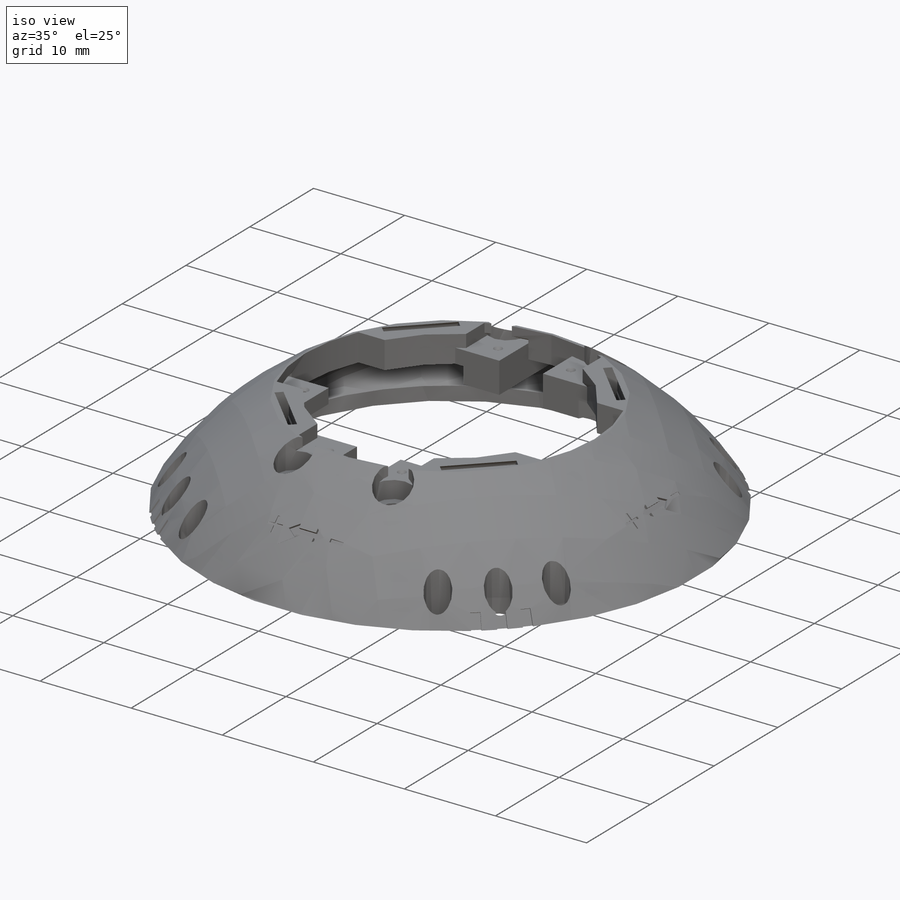
[diagram: iso view]
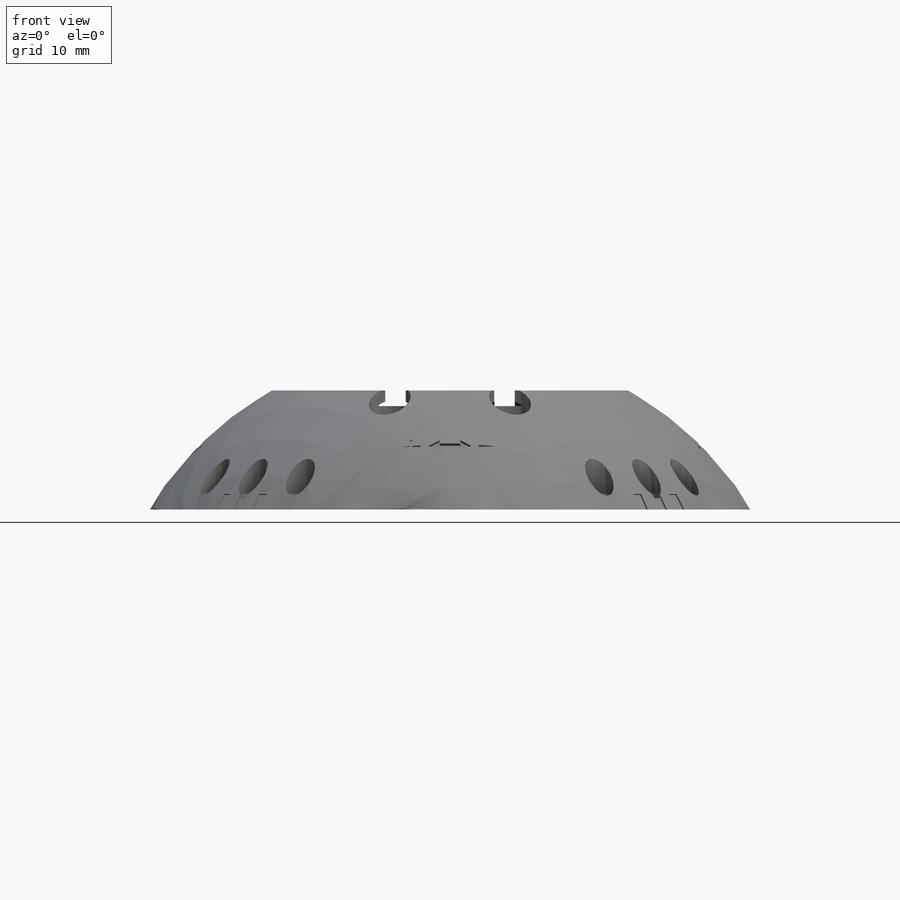
[diagram: front view]
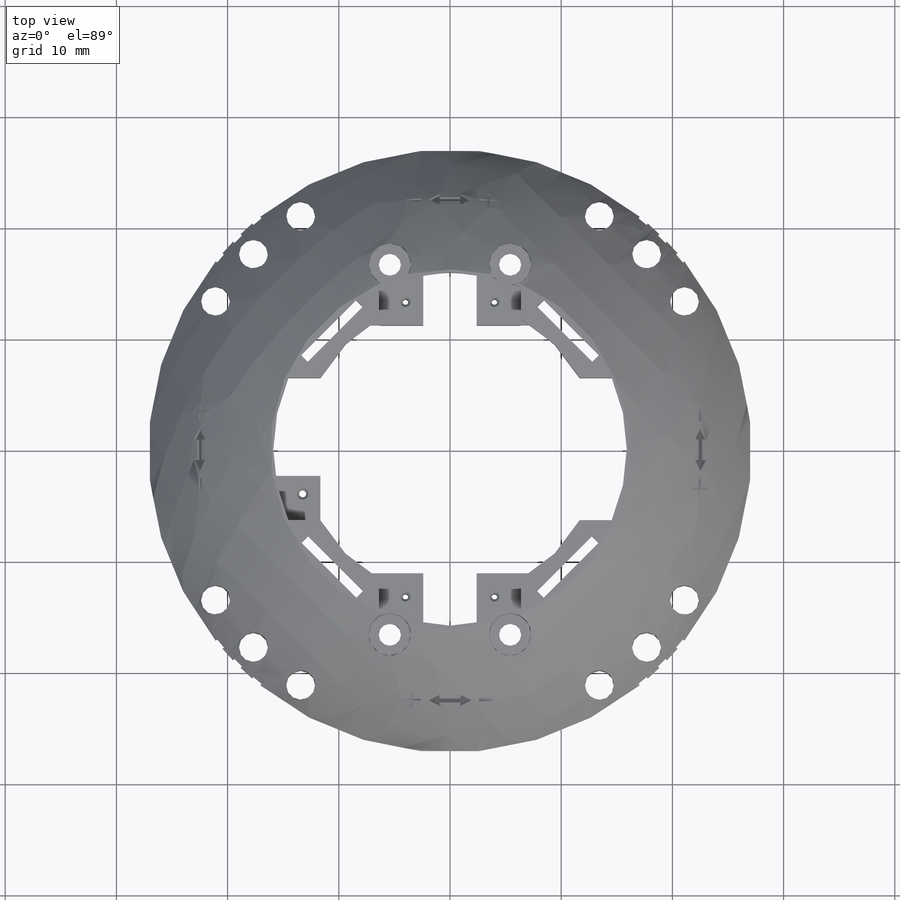
[diagram: top view]
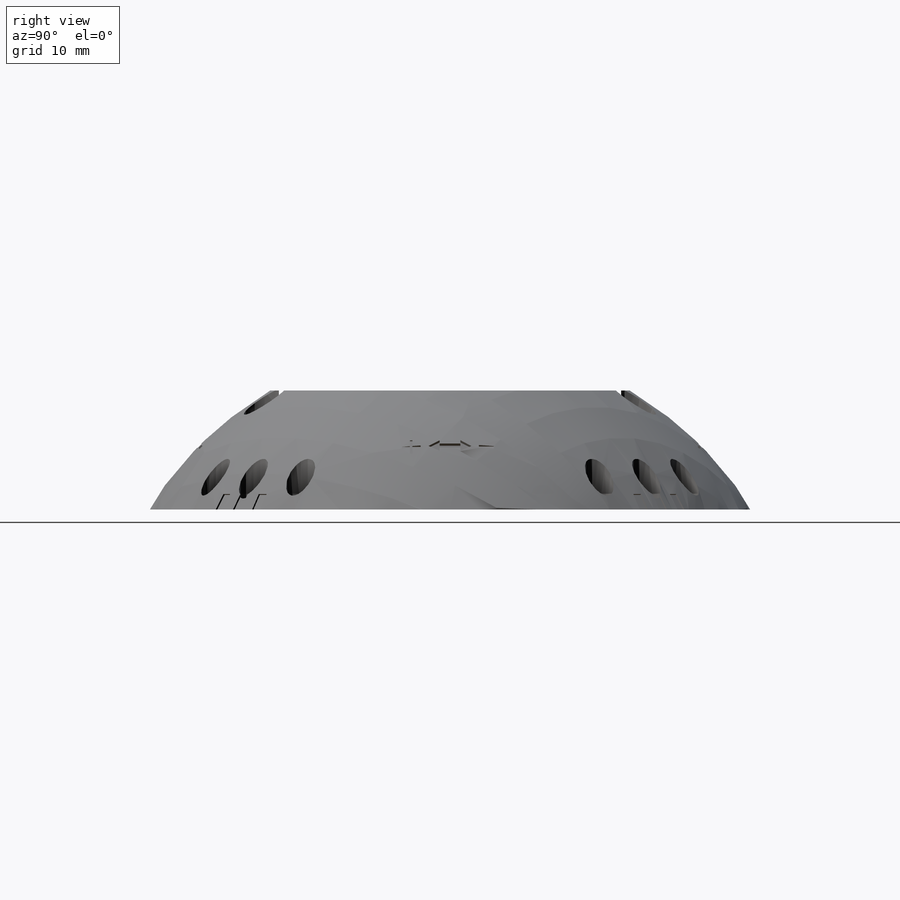
[diagram: right view]
SOLIDWORKS PART (.sldprt)
format: sldprt  version: not decoded by parser v0  size: 39,004,672 bytes
history: native  units: mm
features: sketch x71, cut_extrude x33, extrude x23, pattern_circular x22, plane x21, fillet x10, chamfer x8, cut_revolve x5, revolve x2, material x1, shell x1, mirror x1 + 7 further entries (+34 scaffold rows collapsed; 17 parser-record rows omitted)
feature tree (256):
  scaffold x34  (default folders/planes/origin — collapsed)
  material  "Material <not specified>"
  "Axis7"
  "Axis8"
  sketch  "Sketch1"  dims[c1.D1=10.5mm c1.D2=10.5mm c1.D3=12.0mm c1.D4=10.5mm c2.D1=55.0mm c2.D2=55.0mm]
  extrude  "Extrude1"  Depth=27.5mm
  parser-record x17  (decoder bookkeeping rows leaked as tree rows — omitted from the tree; the rows remain in map.json)
  plane  "Plane1"
  plane  "Plane2"
  plane  "Plane3"
  plane  "Plane4"
  sketch  "3DSketch4"
  plane  "Plane17"
  plane  "Plane6"
  plane  "Plane30"
  "Axis1"
  "Axis2"
  "Axis3"
  "Long Diagonal"
  "Axis5"
  sketch  "Sketch38"  dims[c1.D1=~16.814999mm c2.D1=22.5deg c3.D1=0.2mm c3.D2=0.2mm c3.D3=0.2mm c3.D4=0.2mm]
  sketch  "3DSketch2"  dims[D1=2.0mm D2=2.0mm]
  plane  "Plane12"
  sketch  "3DSketch3"  dims[D1=3.6mm D2=2.0mm D3=2.0mm]
  plane  "Plane13"
  sketch  "Sketch43"  dims[D1=110.0mm D2=31.9mm]
  cut_revolve  "Rounded Corners"  Angle=360deg
  shell  "Shell6"  Thickness=1mm
  plane  "Plane Bearing Bottom"  Offset=15.3mm
  plane  "Plane Bearing Top"  Offset=4.7625mm
  plane  "Plane Batteryboard Bottom"  Offset=10.8mm
  sketch  "Sketch103"
  sketch  "Sketch104"
  sketch  "Sketch49"  dims[c1.D1=43.8mm c1.D2=26.5mm c2.D2=45.0deg c2.D3=22.05mm c3.D3=26.6deg c4.D3=~6.168578mm c5.D3=26.6deg c5.D4=~6.898785mm c5.D2=~6.168578mm c6.D2=26.6deg c6.D3=45.0deg]
  extrude  "Axial Bearing Support"  [1 undecoded]
  pattern_circular  "Axial Bearing Support Pattern"  Count=4 Angle=360deg
  sketch  "Sketch105"  dims[c1.D3=43.8mm c1.D1=~26.312925mm c2.D1=45.0deg c2.D2=~4.793492mm c3.D2=26.6deg]
  extrude  "Axial Battery Board Support"  [1 undecoded]
  pattern_circular  "Axial Battery Board Support Pattern"  Count=4 Angle=360deg
  sketch  "Sketch50"  dims[c1.D1=47.9mm c1.D2=~41.099495mm c2.D2=45.0deg]
  extrude  "Circumference"  [1 undecoded]
  sketch  "Sketch86"  dims[c1.D1=~27.980209mm c2.D1=45.0deg c2.D2=~3.018964mm]
  extrude  "Cube Reinforcement"  [1 undecoded]
  sketch  "Main PCB Snap Holder Sketch"  dims[c1.D1=21.9mm c1.D2=21.275mm c1.D3=2.5mm c1.D4=4.0mm c2.D3=8.0mm]
  revolve  "Main PCB Snap Holder"  Angle=18.4deg
  pattern_circular  "CirPattern77"  Count=4 Angle=360deg
  plane  "Plane25"  Offset=3mm
  sketch  "Connector Sketch"  dims[c1.D6=1.75mm c1.D7=1.75mm c2.D6=3.0mm c2.D8=3.0mm c2.D7=3.0mm c2.D2=13.5mm c2.D3=9.7mm c2.D9=13.3mm c2.D1=~15.892136mm c3.D1=45.0deg c3.D2=~15.892136mm c4.D2=15.0deg c4.D4=1.5875mm c4.D5=6.35mm c4.D9=4.5mm c4.D1=0.5mm c4.D6=1.5mm c4.D7=5.5mm c4.D8=12.8mm c4.D3=0.5mm]
  sketch  "Sketch61"  dims[D1=0.0mm]
  cut_extrude  "Cut-Extrude11"  [1 undecoded]
  pattern_circular  "CirPattern72"  Count=4 Angle=360deg
  pattern_circular  "CirPattern73"  Count=4 Angle=360deg
  sketch  "Sketch63"
  extrude  "Face Design Corners"  Depth=3mm
  sketch  "Sketch64"
  extrude  "Face Design Cross"  Depth=0.9mm
  sketch  "Sketch67"
  extrude  "Face Design Center Round"  Depth=3mm
  sketch  "Sketch56"  dims[c1.D1=1.8mm c1.D2=0.25mm c1.D3=~0.79375mm c1.D4=~0.10625mm c2.D4=135.0deg c2.D5=0.5mm c2.D3=~0.79375mm c2.D2=2.2mm c2.D6=15.0mm]
  cut_extrude  "Magnet Slot"  Depth=3.5mm
  pattern_circular  "Magnet Slot Pattern"  Count=4 Angle=360deg
  pattern_circular  "Replicate Face Design on all Faces 1"  Count=4 Angle=360deg
  pattern_circular  "Replicate Face Design on all Faces 2"  Count=4 Angle=360deg
  sketch  "Sketch72"  dims[c1.D4=0.5mm c1.D8=0.65mm c1.D1=4.0mm c1.D2=0.5mm c1.D3=4.0mm c1.D5=13.25mm c1.D6=4.0mm c1.D7=0.5mm c1.D9=13.25mm c1.D10=4.0mm c2.D6=0.5mm c2.D7=4.0mm]
  extrude  "PCB Attachment Screw Holes"  Depth=1.6mm
  chamfer  "Chamfer6"  Distance=0.3mm Angle=35deg
  sketch  "Sketch73"  dims[D2=0.5mm D1=0.5mm D3=4.0]
  extrude  "PCB Rest Ridge"  Depth=1.6mm
  sketch  "Sketch81"  dims[D1=2.2mm]
  cut_extrude  "Cutout for Connector Cable"  Depth=2mm
  sketch  "Sketch115"
  extrude  "Boss-Extrude19"  Depth=3mm
  pattern_circular  "CirPattern74"  Count=4 Angle=360deg
  pattern_circular  "CirPattern75"  Count=2 Angle=90deg
  pattern_circular  "CirPattern76"  Count=2 Angle=270deg
  chamfer  "Chamfer7"  Distance=0.8mm Angle=45deg
  chamfer  "Chamfer8"  Distance=0.8mm Angle=45deg
  sketch  "Sketch68"
  cut_extrude  "Face Design Slip Ring Cavity"  Depth=2.4mm
  sketch  "Sketch117"  dims[D1=12.0mm D2=2.5mm]
  cut_extrude  "Cut-Extrude25"  Depth=1.5mm
  sketch  "Sketch69"
  extrude  "Boss-Extrude8"  Depth=3mm
  sketch  "Sketch87"
  cut_extrude  "Cut-Extrude18"  [1 undecoded]
  sketch  "Sketch70"
  cut_extrude  "Cut-Extrude13"  [1 undecoded]
  chamfer  "Chamfer2"  Distance=0.5mm Angle=45deg
  chamfer  "Chamfer3"  Distance=0.5mm Angle=45deg
  chamfer  "Chamfer4"  Distance=0.5mm Angle=45deg
  chamfer  "Chamfer5"  Distance=0.5mm Angle=60deg
  sketch  "Sketch106"  dims[D1=8.7mm]
  cut_extrude  "Sensor Cavity"  Depth=2.6mm
  sketch  "Sketch107"  dims[D1=7.75mm]
  cut_extrude  "Sensor Hole"  [1 undecoded]
  sketch  "Sketch109"  dims[D1=9.5mm]
  cut_extrude  "Cut-Extrude20"  Depth=1.8mm
  sketch  "Sketch110"  dims[D1=3.0mm D2=9.5mm]
  cut_extrude  "Cut-Extrude21"  Depth=3mm
  pattern_circular  "Sensor on Bottom"  Count=2 Angle=90deg
  pattern_circular  "CirPattern81"  Count=2 Angle=90deg
  pattern_circular  "CirPattern82"  Count=4 Angle=360deg
  plane  "Plane28"  Offset=10mm
  sketch  "Sketch74"  dims[D1=5.0mm D2=5.0mm D3=6.0mm]
  cut_extrude  "Programming Connector Access"  [1 undecoded]
  sketch  "Sketch85"  dims[c1.D1=~33.578197mm c2.D1=45.0deg c2.D2=10.0mm c3.D1=~19.775463mm c3.D3=~2.854579mm c4.D1=~22.630042mm c4.D4=~43.381775mm c5.D4=45.0deg]
  cut_extrude  "Cut-Extrude17"  Depth=22mm
  sketch  "Sketch51"  dims[c1.D1=50.0mm c1.D3=1.6mm c1.D2=~22.897804mm c2.D2=32.5deg]
  cut_extrude  "Cut-Extrude3"  [1 undecoded]
  pattern_circular  "CirPattern65"  Count=3 Angle=25deg
  pattern_circular  "CirPattern66"  Count=4 Angle=360deg
  sketch  "Sketch91"  dims[c1.D2=33.0mm c1.D1=31.75mm c1.D3=1.25mm c2.D3=5.0deg c2.D4=1.25mm c3.D4=5.0deg c4.D4=31.75mm c4.D3=~27.624908mm c5.D3=3.0deg c5.D4=1.25mm c6.D4=5.0deg c6.D5=31.75mm c7.D5=~31.779102deg c7.D1=1.0mm]
  cut_revolve  "Alignment Notch"  Angle=1deg
  pattern_circular  "Alignment Notch CirPattern"  Count=4 Angle=360deg
  pattern_circular  "CirPattern83"  Count=2 Angle=5deg
  pattern_circular  "CirPattern84"  Count=2 Angle=5deg
  sketch  "Sketch123"
  cut_extrude  "Cut-Extrude27"  [1 undecoded]
  plane  "Plane End of Large Part"  Offset=16.5mm
  sketch  "Sketch52"
  cut_extrude  "Cut-Extrude4"  [1 undecoded]
  plane  "Plane End of Small Part"  Offset=16.8mm
  sketch  "Sketch53"
  cut_extrude  "Cut-Extrude5"  [1 undecoded]
  sketch  "Sketch90"  dims[c1.diaAussparung=3.5mm c1.D1=~2.909488mm c2.D1=4.0]
  cut_extrude  "Cut-Extrude19"  [1 undecoded]
  plane  "Plane26"  Offset=1.79mm
  sketch  "Sketch82"  dims[c1.D1=~23.374471mm c2.D1=45.0deg c2.D2=~4.772479mm]
  extrude  "Boss-Extrude15"  [1 undecoded]
  pattern_circular  "CirPattern78"  Count=2 Angle=360deg
  plane  "Plane27"  Offset=1.5mm
  sketch  "Sketch83"  dims[c1.D1=2.0mm c1.D2=42.25mm c1.D3=2.0mm c2.D2=35.0mm c2.D4=21.125mm c3.D4=25.0deg c3.D5=21.125mm c4.D5=15.0deg c4.D3=15.625mm c5.D3=18.0deg]
  cut_extrude  "Actuated Cube Screw Holes"  [1 undecoded]
  sketch  "Sketch84"  dims[D1=3.8mm ScrewHoleCapDiameter=3.8mm]
  cut_extrude  "Actuated Cube Screw Recess"  [1 undecoded]
  sketch  "Sketch95"  dims[D1=36.0mm D2=17.0mm D3=17.0mm D4=17.0mm D5=0.5mm]
  extrude  "Battery Cube Solid Rim"  [1 undecoded]
  sketch  "Sketch94"  dims[c1.D1=2.0mm c1.D2=40.0mm c1.D3=~16.332027mm c2.D3=22.25deg c2.D4=3.0]
  cut_extrude  "Battery Cube Screw Holes"  [1 undecoded]
  plane  "Plane29"  Offset=18.3mm
  sketch  "Sketch96"  dims[c1.D1=~7.360896mm c2.D1=3.0]
  cut_extrude  "Battery Cubes Screw Recess"  [1 undecoded]
  sketch  "Sketch99"  dims[c1.D1=17.0mm c1.D2=17.0mm c1.D3=17.0mm c1.D6=2.0066mm c1.D4=21.6916mm c1.D5=11.43mm c2.D4=21.6916mm c2.D7=2.0mm]
  sketch  "Sketch97"  dims[c1.D1=17.0mm c1.D2=17.0mm c1.D3=17.0mm c1.D5=~9.728406mm c2.D5=60.0deg c2.D4=0.5mm c2.D1=2.3mm]
  cut_extrude  "Top Battery Holder Cavity"  [1 undecoded]
  sketch  "Sketch100"  dims[D1=5.0mm]
  extrude  "Top Battery Holder Post"  [1 undecoded]
  sketch  "Sketch101"  dims[D1=0.2mm D2=0.0mm]
  extrude  "Top Battery Holder Nipple"  Depth=1.5mm
  mirror  "Top Magnet Connector Post Nipple Mirror"
  cut_revolve  "Clean Up the Outside"  [1 undecoded]
  sketch  "Sketch43<3>"  dims[D1=360.0deg]
  sketch  "Sketch89"  dims[D1=30.9mm D2=21.0mm]
  cut_revolve  "Cut-Revolve2"  Angle=360deg
  sketch  "Sketch77"  dims[c1.D3=~25.933955mm c1.D1=~27.117706mm c2.D1=45.0deg c2.D2=22.0mm]
  extrude  "Boss-Extrude14"  [1 undecoded]
  sketch  "Sketch75"  dims[c1.D1=55.5mm c1.D2=55.5mm c2.D1=27.75mm c2.D2=27.75mm c2.D3=22.0mm c2.D4=22.0mm]
  extrude  "Boss-Extrude12"  Depth=2mm
  sketch  "Sketch116"  dims[D1=22.0mm]
  cut_extrude  "Cut-Extrude24"  [1 undecoded]
  sketch  "Sketch121"  dims[D1=~5.727429mm]
  extrude  "Boss-Extrude20"  [1 undecoded]
  sketch  "Sketch122"
  extrude  "Boss-Extrude21"  [1 undecoded]
  sketch  "Sketch78"  dims[substrateConnectorRadius=3.0mm substrateConnectorBridgeWidth=3.0mm substrateConnectorBridgeLength=1.5mm substrateConnectorDistanceToEdge=8.0mm]
  extrude  "Connector Positive"  Depth=4mm
  sketch  "Sketch79"  dims[D1=0.2mm]
  cut_extrude  "Connector Negative"  Depth=5mm
  fillet  "Connector Fillet 1"  Radius=0.8mm
  fillet  "Connector Fillet 2"  Radius=1mm
  fillet  "Connector Fillet 3"  Radius=0.5mm
  sketch  "Sketch113"  dims[D1=4.5mm D2=24.0mm]
  cut_extrude  "Mounting Hole"  [1 undecoded]
  pattern_circular  "CirPattern88"  Count=4 Angle=360deg
  sketch  "Sketch124"  dims[D1=33.18mm]
  extrude  "Boss-Extrude22"  Depth=1.5mm
  sketch  "Sketch125"  dims[D1=27.5mm D2=16.59mm]
  cut_revolve  "Cut-Revolve3"  Angle=360deg
  chamfer  "Mounting Hole Chamfer"  Distance=2.7mm Angle=45deg
  fillet  "Fillet2"  Radius=2.5mm
  fillet  "Fillet3"  Radius=4mm
  fillet  "Fillet9"  Radius=2mm
  sketch  "Sketch93"  dims[D1=1.5mm D2=22.0mm]
  revolve  "Revolve2"  Angle=360deg
  fillet  "Fillet7"  Radius=2mm
  sketch  "Sketch108"  dims[D1=4.0mm D2=9.0mm]
  cut_extrude  "Space for Fuse"  Depth=0.5mm
  sketch  "Sketch111"  dims[D1=10.0mm D2=2.5mm D3=18.3mm]
  cut_extrude  "Battery Switch Cavity"  Depth=17.8mm
  sketch  "Sketch112"  dims[c1.D1=0.0mm c1.D2=0.3mm c2.D1=0.3mm]
  cut_extrude  "Cut-Extrude23"  [1 undecoded]
  fillet  "Fillet8"  Radius=0.1mm
  plane  "Plane31"  Offset=32mm
  sketch  "Sketch119"
  cut_extrude  "Cut-Extrude26"  Depth=0.4mm
  pattern_circular  "CirPattern85"  Count=4 Angle=360deg
  sketch  "Sketch126"  dims[c1.D1=50.0mm c1.D3=2.6mm c1.D4=2.6mm c1.D6=2.6mm c1.D2=~7.254148mm c2.D2=32.5deg c2.D5=~16.360522mm c3.D5=45.0deg]
  cut_extrude  "Access Holes for 2M internal screws"  [1 undecoded]
  plane  "Spacer for Robot Arm Plane"  Offset=0.3mm
  sketch  "Sketch127"
  extrude  "Spacer for Robot Arm Test"  [1 undecoded]
  sketch  "Sketch128"  dims[D1=135.0deg D2=5.0mm D3=29.0mm]
  cut_extrude  "Cutout for electricImp"  Depth=32mm
  fillet  "Fillet10"  Radius=0.2mm
  sketch  "Sketch129"  dims[D1=5.0mm]
  cut_extrude  "ElectricImp Blinkup Hole"  [1 undecoded]
  fillet  "Fillet ElectricImp Blinkup Hole"  Radius=0.5mm
decode coverage: 126 of 176 modeling features carry decoded parameters; 7 rows unclassified (native names shown)
note: ~ marks probable driven/reference dimensions
note: 32 parameter values undecoded
summary: no parameter record found for 32 features
note: suppression state not decoded; provenance and decode notes live in map.json
